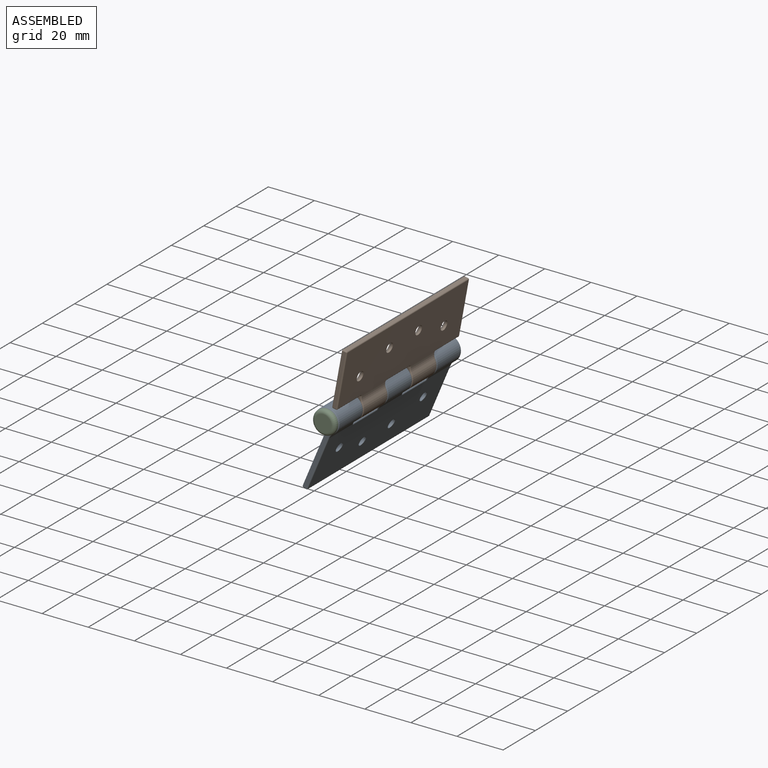
[diagram: assembled view]
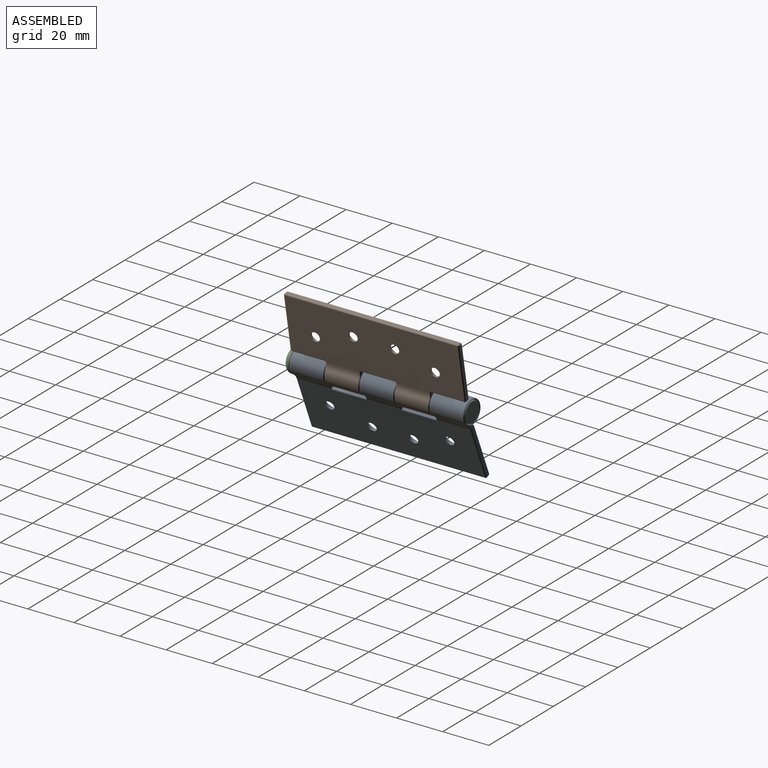
[diagram: assembled view, second angle]
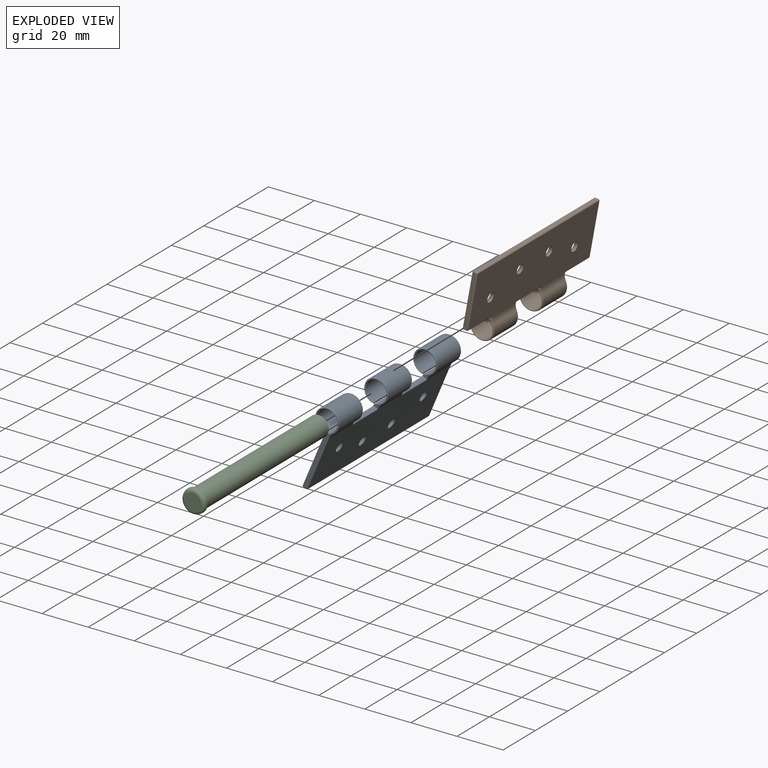
[diagram: exploded view]
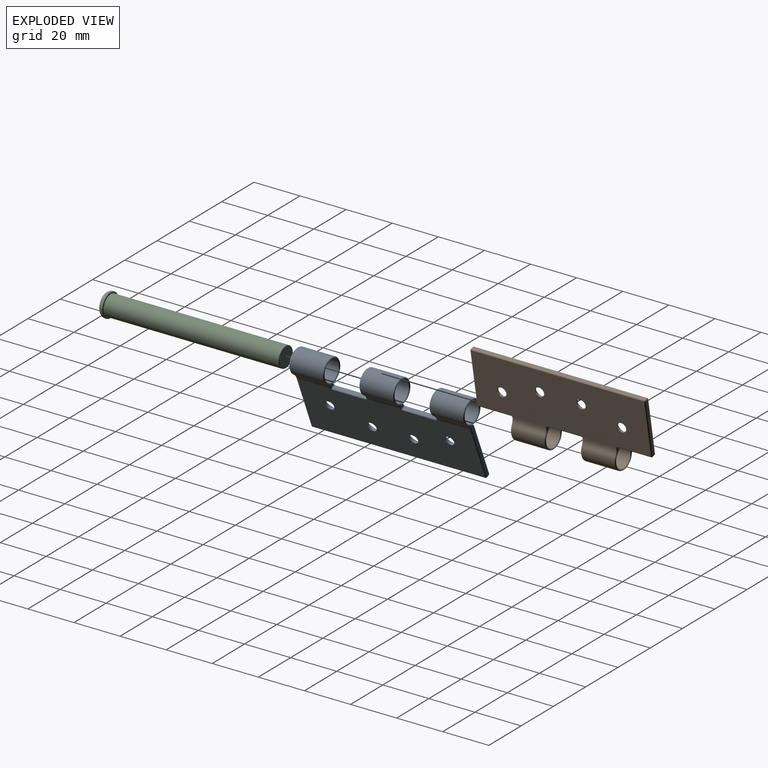
[diagram: exploded view, second angle]
ASSEMBLY  parts=3 mates=2
PART A: 94 faces, bbox 36.3x76x11.6 mm
  f0: cylinder r=5.25mm len=14.2mm, axis (0,1,0), area 412.4mm2, adj f2,f8,f69,f87
  f1: cylinder r=5.25mm len=14.2mm, axis (0,1,0), area 412.4mm2, adj f3,f9,f46,f78
  f2: plane 15.21x0.8mm, normal (0,0,-1), area 11.4mm2, adj f0,f4,f69,f71,f87,f90
  f3: plane 15.21x0.8mm, normal (0,0,-1), area 11.4mm2, adj f1,f5,f45,f46,f78,f80
  f4: cylinder r=4.5mm len=14.2mm, axis (0,1,0), area 382.9mm2, adj f2,f6,f71,f90
  f5: cylinder r=4.5mm len=14.2mm, axis (0,1,0), area 382.9mm2, adj f3,f7,f45,f80
  f6: cylinder r=2.39mm len=14.47mm, axis (0,1,0), area 36mm2, adj f4,f14,f73,f75,f92,f93
  f7: cylinder r=2.39mm len=14.33mm, axis (0,1,0), area 35.9mm2, adj f5,f14,f43,f82,f84
  f8: cylinder r=4.96mm len=14.47mm, axis (0,1,0), area 44.3mm2, adj f0,f16,f66,f68,f85,f88
  f9: cylinder r=4.96mm len=14.33mm, axis (0,1,0), area 44.3mm2, adj f1,f16,f48,f76,f77
  f10: cylinder r=5.25mm len=14.2mm, axis (0,1,0), area 412.4mm2, adj f11,f17,f51,f60
  f11: plane 15.21x0.8mm, normal (0,0,-1), area 11.4mm2, adj f10,f12,f51,f52,f60,f63
  f12: cylinder r=4.5mm len=14.2mm, axis (0,1,0), area 382.9mm2, adj f11,f13,f52,f63
  f13: cylinder r=2.39mm len=14.33mm, axis (0,1,0), area 35.9mm2, adj f12,f14,f49,f65,f67
  f14: plane 75x24mm, normal (0,0,1), area 1630.6mm2, adj f6,f7,f13,f21,f23,f25,f27,f41
  f15: plane 75x1.3mm, normal (1,0,0), area 97.5mm2, adj f38,f39,f42,f55
  f16: plane 75x24mm, normal (0,0,-1), area 1734.3mm2, adj f8,f9,f17,f20,f22,f24,f26,f50
  f17: cylinder r=4.96mm len=14.33mm, axis (0,1,0), area 44.3mm2, adj f10,f16,f54,f58,f61
  f18: plane 26.22x1.77mm, normal (0,-1,0), area 33.2mm2, adj f39,f47,f49,f52,f54,f56
  f19: plane 26.22x1.77mm, normal (0,1,0), area 33.2mm2, adj f38,f41,f43,f45,f48,f50
  f20: cylinder r=2mm len=4mm, axis (0,0,1), area 10.1mm2, adj f16,f21
  f21: cone r=2mm half-angle=45deg, axis (0,0,1), area 36.7mm2, adj f14,f20
  f22: cylinder r=2mm len=4mm, axis (0,0,1), area 10.1mm2, adj f16,f23
  f23: cone r=2mm half-angle=45deg, axis (0,0,1), area 36.7mm2, adj f14,f22
  f24: cylinder r=2mm len=4mm, axis (0,0,1), area 10.1mm2, adj f16,f25
  f25: cone r=2mm half-angle=45deg, axis (0,0,1), area 36.7mm2, adj f14,f24
  f26: cylinder r=2mm len=4mm, axis (0,0,1), area 10.1mm2, adj f16,f27
  f27: cone r=2mm half-angle=45deg, axis (0,0,1), area 36.7mm2, adj f14,f26
  f28: plane 14.2x1.3mm, normal (-1,0,0), area 18.5mm2, adj f34,f35,f81,f89
  f29: plane 1.72x1.7mm, normal (0,-1,0), area 1.3mm2, adj f34,f77,f80,f82
  f30: plane 1.72x1.7mm, normal (0,1,0), area 1.3mm2, adj f35,f88,f90,f92
  f31: plane 14.2x1.3mm, normal (-1,0,0), area 18.5mm2, adj f36,f37,f62,f72
  f32: plane 1.72x1.7mm, normal (0,1,0), area 1.3mm2, adj f36,f61,f63,f65
  f33: plane 1.72x1.7mm, normal (0,-1,0), area 1.3mm2, adj f37,f68,f71,f73
  f34: cylinder r=0.5mm len=1.32mm, axis (0,0,-1), area 1mm2, adj f28,f29,f76,f79,f84,f86
  f35: cylinder r=0.5mm len=1.32mm, axis (0,0,1), area 1mm2, adj f28,f30,f83,f85,f91,f93
  f36: cylinder r=0.5mm len=1.32mm, axis (0,0,-1), area 1mm2, adj f31,f32,f58,f59,f67,f70
  f37: cylinder r=0.5mm len=1.32mm, axis (0,0,1), area 1mm2, adj f31,f33,f64,f66,f74,f75
  f38: cylinder r=0.5mm len=1.3mm, axis (0,0,-1), area 1mm2, adj f15,f19,f40,f53
  f39: cylinder r=0.5mm len=1.3mm, axis (0,0,1), area 1mm2, adj f15,f18,f44,f57
  f40: sphere r=0.5mm, area 0.4mm2, adj f38,f41,f42
  f41: cylinder r=0.5mm len=24mm, axis (1,0,0), area 18.8mm2, adj f14,f19,f40,f43
  f42: cylinder r=0.5mm len=75mm, axis (0,1,0), area 58.9mm2, adj f14,f15,f40,f44
  f43: torus R=1.89mm, axis (0,-1,0), area 1.8mm2, adj f7,f19,f41,f45
  f44: sphere r=0.5mm, area 0.4mm2, adj f39,f42,f47
  f45: torus R=5mm, axis (0,-1,0), area 18.5mm2, adj f3,f5,f19,f43,f46,f48
  f46: torus R=4.75mm, axis (0,-1,0), area 18.7mm2, adj f1,f3,f45,f48
  f47: cylinder r=0.5mm len=24mm, axis (-1,0,0), area 18.8mm2, adj f14,f18,f44,f49
  f48: torus R=5.46mm, axis (0,-1,0), area 2.5mm2, adj f9,f19,f45,f46,f50
  f49: torus R=1.89mm, axis (0,-1,0), area 1.8mm2, adj f13,f18,f47,f52
  f50: cylinder r=0.5mm len=24mm, axis (-1,0,0), area 18.8mm2, adj f16,f19,f48,f53
  f51: torus R=4.75mm, axis (0,-1,0), area 18.7mm2, adj f10,f11,f52,f54
  f52: torus R=5mm, axis (0,-1,0), area 18.5mm2, adj f11,f12,f18,f49,f51,f54
  f53: sphere r=0.5mm, area 0.4mm2, adj f38,f50,f55
  f54: torus R=5.46mm, axis (0,-1,0), area 2.5mm2, adj f17,f18,f51,f52,f56
  f55: cylinder r=0.5mm len=75mm, axis (0,1,0), area 58.9mm2, adj f15,f16,f53,f57
  f56: cylinder r=0.5mm len=24mm, axis (1,0,0), area 18.8mm2, adj f16,f18,f54,f57
  f57: sphere r=0.5mm, area 0.4mm2, adj f39,f55,f56
  f58: bspline ~0.72x0.61mm, area 0.3mm2, adj f17,f36,f59,f61
  f59: torus R=1mm, axis (0,0,1), area 0.6mm2, adj f16,f36,f58,f62
  f60: torus R=4.75mm, axis (0,-1,0), area 18.7mm2, adj f10,f11,f61,f63
  f61: torus R=5.46mm, axis (0,-1,0), area 2.1mm2, adj f17,f32,f58,f60,f63
  f62: cylinder r=0.5mm len=14.2mm, axis (0,-1,0), area 11.2mm2, adj f16,f31,f59,f64
  f63: torus R=5mm, axis (0,-1,0), area 18.5mm2, adj f11,f12,f32,f60,f61,f65
  f64: torus R=1mm, axis (0,0,1), area 0.6mm2, adj f16,f37,f62,f66
  f65: torus R=1.89mm, axis (0,-1,0), area 1.4mm2, adj f13,f32,f63,f67
  f66: bspline ~0.72x0.61mm, area 0.3mm2, adj f8,f37,f64,f68
  f67: bspline ~0.83x0.6mm, area 0.3mm2, adj f13,f36,f65,f70
  f68: torus R=5.46mm, axis (0,-1,0), area 2.1mm2, adj f8,f33,f66,f69,f71
  f69: torus R=4.75mm, axis (0,-1,0), area 18.7mm2, adj f0,f2,f68,f71
  f70: torus R=1mm, axis (0,0,-1), area 0.6mm2, adj f14,f36,f67,f72
  f71: torus R=5mm, axis (0,-1,0), area 18.5mm2, adj f2,f4,f33,f68,f69,f73
  f72: cylinder r=0.5mm len=14.2mm, axis (0,-1,0), area 11.2mm2, adj f14,f31,f70,f74
  f73: torus R=1.89mm, axis (0,-1,0), area 1.4mm2, adj f6,f33,f71,f75
  f74: torus R=1mm, axis (0,0,-1), area 0.6mm2, adj f14,f37,f72,f75
  f75: bspline ~0.83x0.6mm, area 0.3mm2, adj f6,f37,f73,f74
  f76: bspline ~0.72x0.61mm, area 0.3mm2, adj f9,f34,f77,f79
  f77: torus R=5.46mm, axis (0,-1,0), area 2.1mm2, adj f9,f29,f76,f78,f80
  f78: torus R=4.75mm, axis (0,-1,0), area 18.7mm2, adj f1,f3,f77,f80
  f79: torus R=1mm, axis (0,0,1), area 0.6mm2, adj f16,f34,f76,f81
  f80: torus R=5mm, axis (0,-1,0), area 18.5mm2, adj f3,f5,f29,f77,f78,f82
  f81: cylinder r=0.5mm len=14.2mm, axis (0,1,0), area 11.2mm2, adj f16,f28,f79,f83
  f82: torus R=1.89mm, axis (0,-1,0), area 1.4mm2, adj f7,f29,f80,f84
  f83: torus R=1mm, axis (0,0,1), area 0.6mm2, adj f16,f35,f81,f85
  f84: bspline ~0.83x0.6mm, area 0.3mm2, adj f7,f34,f82,f86
  f85: bspline ~0.72x0.61mm, area 0.3mm2, adj f8,f35,f83,f88
  f86: torus R=1mm, axis (0,0,-1), area 0.6mm2, adj f14,f34,f84,f89
  f87: torus R=4.75mm, axis (0,-1,0), area 18.7mm2, adj f0,f2,f88,f90
  f88: torus R=5.46mm, axis (0,-1,0), area 2.1mm2, adj f8,f30,f85,f87,f90
  f89: cylinder r=0.5mm len=14.2mm, axis (0,-1,0), area 11.2mm2, adj f14,f28,f86,f91
  f90: torus R=5mm, axis (0,-1,0), area 18.5mm2, adj f2,f4,f30,f87,f88,f92
  f91: torus R=1mm, axis (0,0,-1), area 0.6mm2, adj f14,f35,f89,f93
  f92: torus R=1.89mm, axis (0,-1,0), area 1.4mm2, adj f6,f30,f90,f93
  f93: bspline ~0.83x0.6mm, area 0.3mm2, adj f6,f35,f91,f92
PART B: 90 faces, bbox 36.3x76x11.6 mm
  f0: cylinder r=5.25mm len=14.2mm, axis (0,1,0), area 412.4mm2, adj f2,f8,f59,f83
  f1: cylinder r=5.25mm len=14.2mm, axis (0,1,0), area 412.4mm2, adj f3,f9,f46,f74
  f2: plane 15.21x0.8mm, normal (0,0,-1), area 11.4mm2, adj f0,f4,f59,f61,f83,f86
  f3: plane 15.21x0.8mm, normal (0,0,-1), area 11.4mm2, adj f1,f5,f46,f49,f74,f76
  f4: cylinder r=4.5mm len=14.2mm, axis (0,1,0), area 382.9mm2, adj f2,f6,f61,f86
  f5: cylinder r=4.5mm len=14.2mm, axis (0,1,0), area 382.9mm2, adj f3,f7,f49,f76
  f6: cylinder r=2.39mm len=14.47mm, axis (0,1,0), area 36mm2, adj f4,f10,f63,f65,f88,f89
  f7: cylinder r=2.39mm len=14.47mm, axis (0,1,0), area 36mm2, adj f5,f10,f51,f53,f78,f80
  f8: cylinder r=4.96mm len=14.47mm, axis (0,1,0), area 44.3mm2, adj f0,f12,f56,f58,f81,f84
  f9: cylinder r=4.96mm len=14.47mm, axis (0,1,0), area 44.3mm2, adj f1,f12,f44,f47,f72,f73
  f10: plane 75x24mm, normal (0,0,1), area 1623.5mm2, adj f6,f7,f16,f18,f20,f22,f55,f57
  f11: plane 75x1.3mm, normal (-1,0,0), area 97.5mm2, adj f36,f37,f43,f66
  f12: plane 75x24mm, normal (0,0,-1), area 1727.2mm2, adj f8,f9,f15,f17,f19,f21,f39,f40
  f13: plane 23.5x1.3mm, normal (0,-1,0), area 30.6mm2, adj f30,f37,f39,f62
  f14: plane 23.5x1.3mm, normal (0,1,0), area 30.6mm2, adj f34,f36,f48,f70
  f15: cylinder r=2mm len=4mm, axis (0,0,1), area 10.1mm2, adj f12,f16
  f16: cone r=2mm half-angle=45deg, axis (0,0,1), area 36.7mm2, adj f10,f15
  f17: cylinder r=2mm len=4mm, axis (0,0,1), area 10.1mm2, adj f12,f18
  f18: cone r=2mm half-angle=45deg, axis (0,0,1), area 36.7mm2, adj f10,f17
  f19: cylinder r=2mm len=4mm, axis (0,0,1), area 10.1mm2, adj f12,f20
  f20: cone r=2mm half-angle=45deg, axis (0,0,1), area 36.7mm2, adj f10,f19
  f21: cylinder r=2mm len=4mm, axis (0,0,1), area 10.1mm2, adj f12,f22
  f22: cone r=2mm half-angle=45deg, axis (0,0,1), area 36.7mm2, adj f10,f21
  f23: plane 14.2x1.3mm, normal (1,0,0), area 18.5mm2, adj f30,f31,f40,f57
  f24: plane 1.72x1.7mm, normal (0,-1,0), area 1.3mm2, adj f31,f47,f49,f51
  f25: plane 14.2x1.3mm, normal (1,0,0), area 18.5mm2, adj f32,f33,f77,f85
  f26: plane 1.72x1.7mm, normal (0,1,0), area 1.3mm2, adj f32,f73,f76,f78
  f27: plane 1.72x1.7mm, normal (0,-1,0), area 1.3mm2, adj f33,f84,f86,f88
  f28: plane 14.2x1.3mm, normal (1,0,0), area 18.5mm2, adj f34,f35,f52,f69
  f29: plane 1.72x1.7mm, normal (0,1,0), area 1.3mm2, adj f35,f58,f61,f63
  f30: cylinder r=0.5mm len=1.3mm, axis (0,0,1), area 1mm2, adj f13,f23,f38,f60
  f31: cylinder r=0.5mm len=1.32mm, axis (0,0,1), area 1mm2, adj f23,f24,f42,f44,f53,f55
  f32: cylinder r=0.5mm len=1.32mm, axis (0,0,-1), area 1mm2, adj f25,f26,f72,f75,f80,f82
  f33: cylinder r=0.5mm len=1.32mm, axis (0,0,1), area 1mm2, adj f25,f27,f79,f81,f87,f89
  f34: cylinder r=0.5mm len=1.3mm, axis (0,0,-1), area 1mm2, adj f14,f28,f50,f71
  f35: cylinder r=0.5mm len=1.32mm, axis (0,0,-1), area 1mm2, adj f28,f29,f54,f56,f65,f67
  f36: cylinder r=0.5mm len=1.3mm, axis (0,0,-1), area 1mm2, adj f11,f14,f45,f68
  f37: cylinder r=0.5mm len=1.3mm, axis (0,0,1), area 1mm2, adj f11,f13,f41,f64
  f38: sphere r=0.5mm, area 0.4mm2, adj f30,f39,f40
  f39: cylinder r=0.5mm len=23.5mm, axis (-1,0,0), area 18.5mm2, adj f12,f13,f38,f41
  f40: cylinder r=0.5mm len=14.2mm, axis (0,1,0), area 11.2mm2, adj f12,f23,f38,f42
  f41: sphere r=0.5mm, area 0.4mm2, adj f37,f39,f43
  f42: torus R=1mm, axis (0,0,1), area 0.6mm2, adj f12,f31,f40,f44
  f43: cylinder r=0.5mm len=75mm, axis (0,1,0), area 58.9mm2, adj f11,f12,f41,f45
  f44: bspline ~0.72x0.61mm, area 0.3mm2, adj f9,f31,f42,f47
  f45: sphere r=0.5mm, area 0.4mm2, adj f36,f43,f48
  f46: torus R=4.75mm, axis (0,1,0), area 18.7mm2, adj f1,f3,f47,f49
  f47: torus R=5.46mm, axis (0,1,0), area 2.1mm2, adj f9,f24,f44,f46,f49
  f48: cylinder r=0.5mm len=23.5mm, axis (1,0,0), area 18.5mm2, adj f12,f14,f45,f50
  f49: torus R=5mm, axis (0,1,0), area 18.5mm2, adj f3,f5,f24,f46,f47,f51
  f50: sphere r=0.5mm, area 0.4mm2, adj f34,f48,f52
  f51: torus R=1.89mm, axis (0,1,0), area 1.4mm2, adj f7,f24,f49,f53
  f52: cylinder r=0.5mm len=14.2mm, axis (0,-1,0), area 11.2mm2, adj f12,f28,f50,f54
  f53: bspline ~0.83x0.6mm, area 0.3mm2, adj f7,f31,f51,f55
  f54: torus R=1mm, axis (0,0,1), area 0.6mm2, adj f12,f35,f52,f56
  f55: torus R=1mm, axis (0,0,-1), area 0.6mm2, adj f10,f31,f53,f57
  f56: bspline ~0.72x0.61mm, area 0.3mm2, adj f8,f35,f54,f58
  f57: cylinder r=0.5mm len=14.2mm, axis (0,1,0), area 11.2mm2, adj f10,f23,f55,f60
  f58: torus R=5.46mm, axis (0,1,0), area 2.1mm2, adj f8,f29,f56,f59,f61
  f59: torus R=4.75mm, axis (0,1,0), area 18.7mm2, adj f0,f2,f58,f61
  f60: sphere r=0.5mm, area 0.4mm2, adj f30,f57,f62
  f61: torus R=5mm, axis (0,1,0), area 18.5mm2, adj f2,f4,f29,f58,f59,f63
  f62: cylinder r=0.5mm len=23.5mm, axis (1,0,0), area 18.5mm2, adj f10,f13,f60,f64
  f63: torus R=1.89mm, axis (0,1,0), area 1.4mm2, adj f6,f29,f61,f65
  f64: sphere r=0.5mm, area 0.4mm2, adj f37,f62,f66
  f65: bspline ~0.83x0.6mm, area 0.3mm2, adj f6,f35,f63,f67
  f66: cylinder r=0.5mm len=75mm, axis (0,1,0), area 58.9mm2, adj f10,f11,f64,f68
  f67: torus R=1mm, axis (0,0,-1), area 0.6mm2, adj f10,f35,f65,f69
  f68: sphere r=0.5mm, area 0.4mm2, adj f36,f66,f70
  f69: cylinder r=0.5mm len=14.2mm, axis (0,1,0), area 11.2mm2, adj f10,f28,f67,f71
  f70: cylinder r=0.5mm len=23.5mm, axis (-1,0,0), area 18.5mm2, adj f10,f14,f68,f71
  f71: sphere r=0.5mm, area 0.4mm2, adj f34,f69,f70
  f72: bspline ~0.72x0.61mm, area 0.3mm2, adj f9,f32,f73,f75
  f73: torus R=5.46mm, axis (0,1,0), area 2.1mm2, adj f9,f26,f72,f74,f76
  f74: torus R=4.75mm, axis (0,1,0), area 18.7mm2, adj f1,f3,f73,f76
  f75: torus R=1mm, axis (0,0,1), area 0.6mm2, adj f12,f32,f72,f77
  f76: torus R=5mm, axis (0,1,0), area 18.5mm2, adj f3,f5,f26,f73,f74,f78
  f77: cylinder r=0.5mm len=14.2mm, axis (0,1,0), area 11.2mm2, adj f12,f25,f75,f79
  f78: torus R=1.89mm, axis (0,1,0), area 1.4mm2, adj f7,f26,f76,f80
  f79: torus R=1mm, axis (0,0,1), area 0.6mm2, adj f12,f33,f77,f81
  f80: bspline ~0.83x0.6mm, area 0.3mm2, adj f7,f32,f78,f82
  f81: bspline ~0.72x0.61mm, area 0.3mm2, adj f8,f33,f79,f84
  f82: torus R=1mm, axis (0,0,-1), area 0.6mm2, adj f10,f32,f80,f85
  f83: torus R=4.75mm, axis (0,1,0), area 18.7mm2, adj f0,f2,f84,f86
  f84: torus R=5.46mm, axis (0,1,0), area 2.1mm2, adj f8,f27,f81,f83,f86
  f85: cylinder r=0.5mm len=14.2mm, axis (0,1,0), area 11.2mm2, adj f10,f25,f82,f87
  f86: torus R=5mm, axis (0,1,0), area 18.5mm2, adj f2,f4,f27,f83,f84,f88
  f87: torus R=1mm, axis (0,0,-1), area 0.6mm2, adj f10,f33,f85,f89
  f88: torus R=1.89mm, axis (0,1,0), area 1.4mm2, adj f6,f27,f86,f89
  f89: bspline ~0.83x0.6mm, area 0.3mm2, adj f6,f33,f87,f88
PART C: 8 faces, bbox 11x78.2x11 mm
  f0: cylinder r=4.4mm len=75.8mm, axis (0,1,0), area 2095.6mm2, adj f2,f5
  f1: plane 8.4x8.4mm, normal (0,-1,0), area 55.4mm2, adj f2
  f2: torus R=4.2mm, axis (0,-1,0), area 8.5mm2, adj f0,f1
  f3: cylinder r=5.1mm len=10.21mm, axis (0,-1,0), area 16mm2, adj f6,f7
  f4: plane 7.21x7.21mm, normal (0,1,0), area 40.8mm2, adj f6
  f5: plane 9.81x9.81mm, normal (0,-1,0), area 14.7mm2, adj f0,f7
  f6: torus R=3.6mm, axis (0,1,0), area 67.5mm2, adj f3,f4
  f7: torus R=4.9mm, axis (0,1,0), area 9.9mm2, adj f3,f5
PLACE A rot(axis=(-0.55,0,0.83),180deg) t=(11.18,-63.56,25.23)mm
PLACE B rot(axis=(-0.64,0,0.77),180deg) t=(10.01,-63.53,25.8)mm
PLACE C rot(axis=(0.2,0,0.98),180deg) t=(13.09,-63.57,16.85)mm
MATE revolute C.f0 <-> A.f0  axis (0,1,0) through (7.94,12.43,20.08)mm
MATE revolute B.f0 <-> A.f0  axis (0,-1,0) through (7.94,-2.74,20.08)mm
